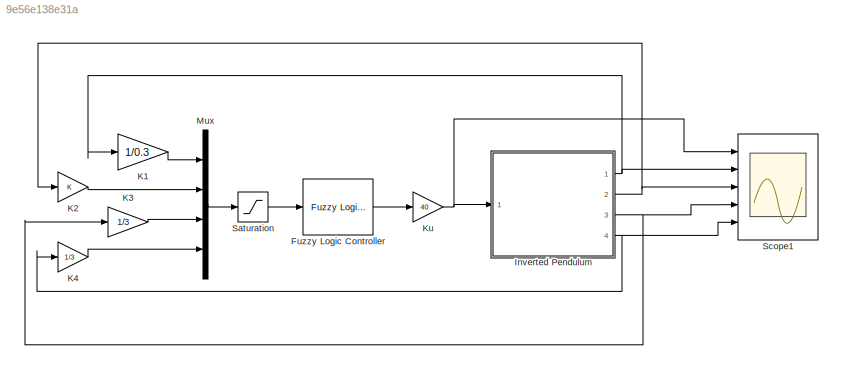
MODEL slx_9e56e138e31a
KIND model
CONFIG AbsTol = auto
CONFIG EnableMultiTasking = off
CONFIG FixedStep = 0.01
CONFIG MaxStep = auto
CONFIG MinStep = auto
CONFIG RelTol = 1e-3
CONFIG SampleTimeConstraint = Unconstrained
CONFIG Solver = ode5
CONFIG SolverName = ode5
CONFIG StartTime = 0.0
CONFIG StopTime = 15
BLOCK [Reference] Fuzzy Logic Controller  REF=fuzblock/Fuzzy Logic   (lib defined in mdl_858b3b3e7478)
Controller
  Ports = [1, 1]
  SourceBlock = fuzblock/Fuzzy Logic \nController
  SourceProductBaseCode = FL
  SourceProductName = Fuzzy Logic Toolbox
  SourceType = Fuzzy Inference System
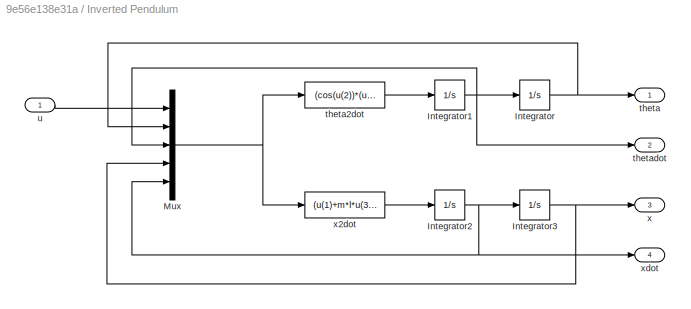
BLOCK [SubSystem] Inverted Pendulum
  Ports = [1, 4]
  RequestExecContextInheritance = off
BLOCK [Integrator] Inverted Pendulum/Integrator
  InitialCondition = theta0
  Ports = [1, 1]
BLOCK [Integrator] Inverted Pendulum/Integrator1
  InitialCondition = thetadot0
  Ports = [1, 1]
BLOCK [Integrator] Inverted Pendulum/Integrator2
  InitialCondition = xdot0
  Ports = [1, 1]
BLOCK [Integrator] Inverted Pendulum/Integrator3
  InitialCondition = x0
  Ports = [1, 1]
BLOCK [Mux] Inverted Pendulum/Mux
  DisplayOption = bar
  Inputs = 5
  Ports = [5, 1]
BLOCK [Outport] Inverted Pendulum/theta
  IconDisplay = Port number
BLOCK [Fcn] Inverted Pendulum/theta2dot
  Expr = (cos(u(2))*(u(1)+m*g*u(3)^2*sin(u(2)))-(M1+m)*g*sin(u(2)))/(m*l*cos(u(2))^2-(M1+m)*l)
BLOCK [Outport] Inverted Pendulum/thetadot
  IconDisplay = Port number
  Port = 2
BLOCK [Inport] Inverted Pendulum/u
  IconDisplay = Port number
BLOCK [Outport] Inverted Pendulum/x
  IconDisplay = Port number
  Port = 3
BLOCK [Fcn] Inverted Pendulum/x2dot
  Expr = (u(1)+m*l*u(3)^2*sin(u(2))-m*g*sin(u(2))*cos(u(2)))/((M1+m)-m*cos(u(2))^2)
BLOCK [Outport] Inverted Pendulum/xdot
  IconDisplay = Port number
  Port = 4
BLOCK [Gain] K1
  Gain = 1/0.3
  OutDataTypeStr = Inherit: Inherit via internal rule
  ParamDataTypeStr = Inherit: Inherit via internal rule
  SaturateOnIntegerOverflow = off
BLOCK [Gain] K2
  OutDataTypeStr = Inherit: Inherit via internal rule
  ParamDataTypeStr = Inherit: Inherit via internal rule
  SaturateOnIntegerOverflow = off
BLOCK [Gain] K3
  Gain = 1/3
  OutDataTypeStr = Inherit: Inherit via internal rule
  ParamDataTypeStr = Inherit: Inherit via internal rule
  SaturateOnIntegerOverflow = off
BLOCK [Gain] K4
  Gain = 1/3
  OutDataTypeStr = Inherit: Inherit via internal rule
  ParamDataTypeStr = Inherit: Inherit via internal rule
  SaturateOnIntegerOverflow = off
BLOCK [Gain] Ku
  Gain = 40
  OutDataTypeStr = Inherit: Inherit via internal rule
  ParamDataTypeStr = Inherit: Inherit via internal rule
  SaturateOnIntegerOverflow = off
BLOCK [Mux] Mux
  DisplayOption = bar
  Ports = [4, 1]
BLOCK [Saturate] Saturation
  InputPortMap = u0
  LowerLimit = -1
  Ports = [1, 1]
  UpperLimit = 1
BLOCK [Scope] Scope1
  Floating = off
  NumInputPorts = 5
  Ports = [5]
  ScopeSpecificationString = Simulink.scopes.TimeScopeBlockCfg('CurrentConfiguration', extmgr.ConfigurationSet(extmgr.Configuration('Core','General UI',true,'FigureColor',[1 1 1]),extmgr.Configuration('Core','Source UI',true),extmgr.Configuration('Sources','WiredSimulink',true,'DataLoggingVariableName','ScopeData1'),extmgr.Configuration('Visuals','Time Domain',true,'SerializedDisplays',{struct('MinYLimReal','-11.01283','MaxYL...<+5651ch>
LINE Fuzzy Logic Controller:1 -> Ku:1
NET Inverted Pendulum/Integrator1:1 -> Inverted Pendulum/Integrator:1, Inverted Pendulum/Mux:3, Inverted Pendulum/thetadot:1
NET Inverted Pendulum/Integrator2:1 -> Inverted Pendulum/Integrator3:1, Inverted Pendulum/Mux:5, Inverted Pendulum/xdot:1
NET Inverted Pendulum/Integrator3:1 -> Inverted Pendulum/Mux:4, Inverted Pendulum/x:1
NET Inverted Pendulum/Integrator:1 -> Inverted Pendulum/Mux:2, Inverted Pendulum/theta:1
NET Inverted Pendulum/Mux:1 -> Inverted Pendulum/theta2dot:1, Inverted Pendulum/x2dot:1
LINE Inverted Pendulum/theta2dot:1 -> Inverted Pendulum/Integrator1:1
LINE Inverted Pendulum/u:1 -> Inverted Pendulum/Mux:1
LINE Inverted Pendulum/x2dot:1 -> Inverted Pendulum/Integrator2:1
NET Inverted Pendulum:1 -> K1:1, Scope1:2
NET Inverted Pendulum:2 -> K2:1, Scope1:3
NET Inverted Pendulum:3 -> K3:1, Scope1:4
NET Inverted Pendulum:4 -> K4:1, Scope1:5
LINE K1:1 -> Mux:1
LINE K2:1 -> Mux:2
LINE K3:1 -> Mux:3
LINE K4:1 -> Mux:4
NET Ku:1 -> Inverted Pendulum:1, Scope1:1
LINE Mux:1 -> Saturation:1
LINE Saturation:1 -> Fuzzy Logic Controller:1
note: NET lines group one-source signal fan-out (src -> all destinations, sorted); 1:1 wires keep LINE
